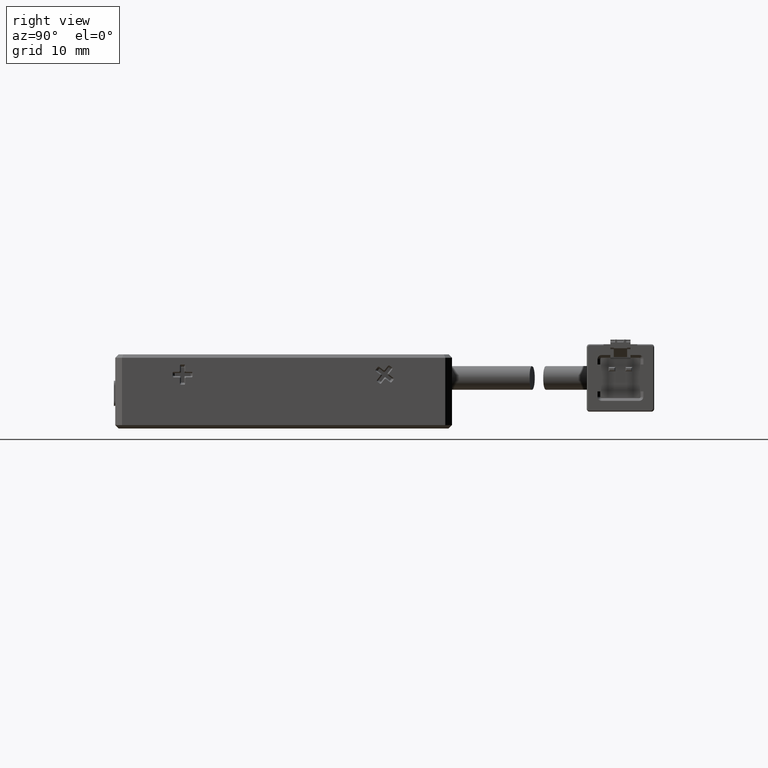
[diagram: clean part render]
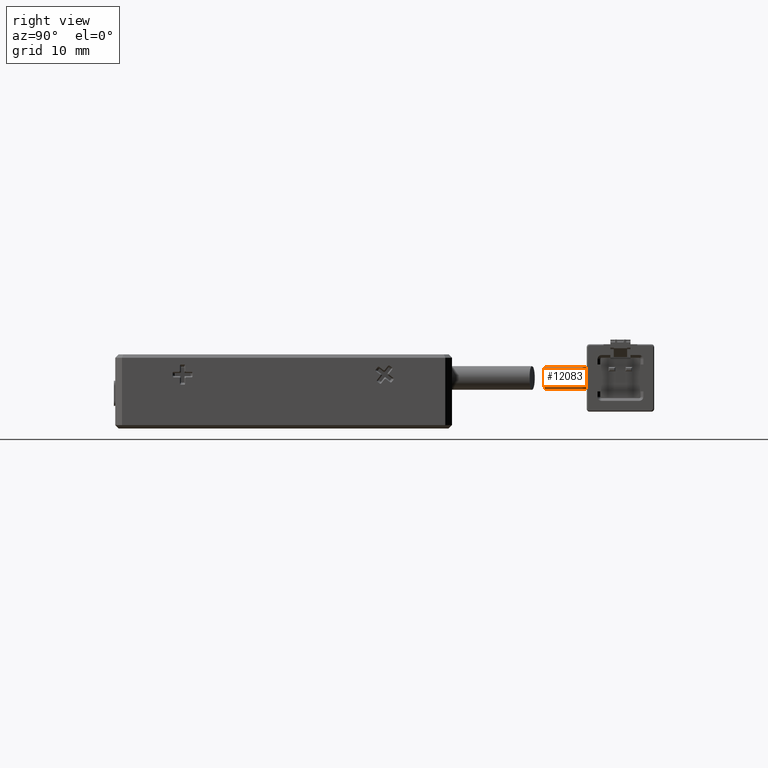
[diagram: same view with one face highlighted and labeled with its STEP entity id]
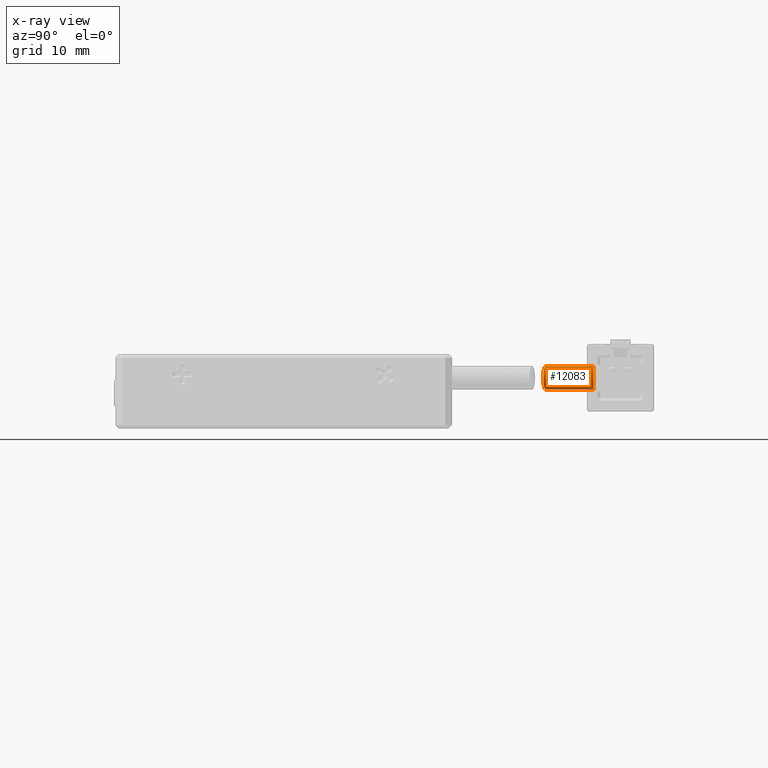
[diagram: x-ray of the same camera — body ghosted, the highlighted face saturated]
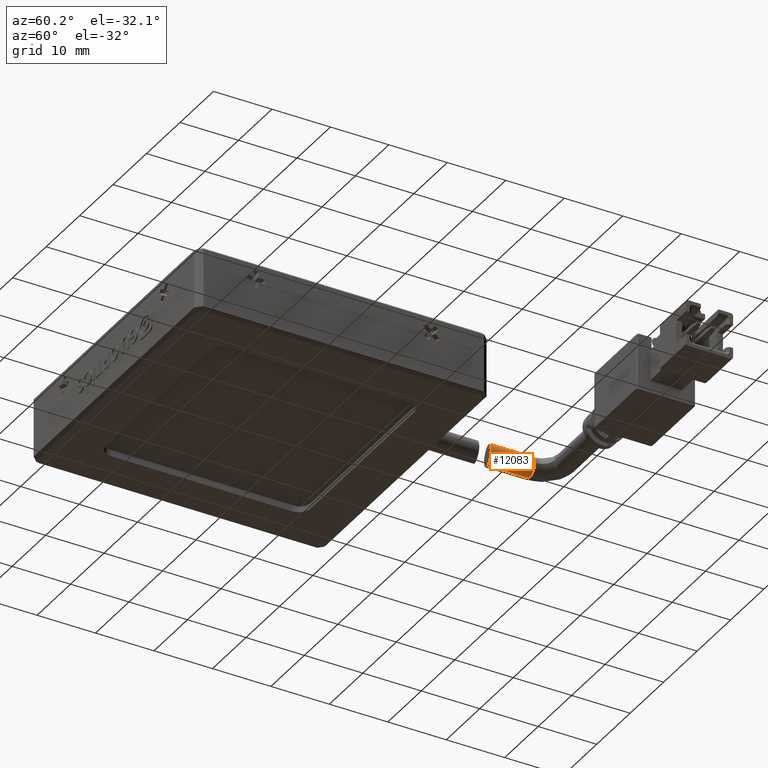
[diagram: same view with one face highlighted and labeled with its STEP entity id]
A machine part, right view. The second image highlights one B-rep face of the part: STEP entity #12083.
The next image is the same camera in x-ray: the body ghosted, the highlighted face saturated — about 13% of this face is hidden behind the body in this view.
A second angle (auxiliary view) of the same face is appended — the face is thin or edge-on in the first view.
In plain terms, the highlighted cylindrical surface (edge-blend (fillet) strip) has radius 1.75 mm, axis along (0, -1, -0).
Its self-contained STEP definition (entity closure, byte-faithful):
#365 = CARTESIAN_POINT ( 'NONE',  ( 19.26702531645571900, 60.21113924050633400, -3.000000000000000900 ) ) ;
#1359 = CARTESIAN_POINT ( 'NONE',  ( 19.71275514413443400, 53.02742988468224200, 0.4460012198360881500 ) ) ;
#1499 = CARTESIAN_POINT ( 'NONE',  ( 21.00559351033045300, 52.74674787386325600, -1.480970045366376100 ) ) ;
#1631 = CARTESIAN_POINT ( 'NONE',  ( 19.26702531645568000, 53.13781279950961800, -3.000000000000000900 ) ) ;
#2390 = VERTEX_POINT ( 'NONE', #15732 ) ;
#2469 = VERTEX_POINT ( 'NONE', #29141 ) ;
#3048 = DIRECTION ( 'NONE',  ( 0.0000000000000000000, 0.0000000000000000000, -1.000000000000000000 ) ) ;
#3087 = EDGE_CURVE ( 'NONE', #2469, #29825, #23525, .T. ) ;
#3226 = B_SPLINE_CURVE_WITH_KNOTS ( 'NONE', 3,
 ( #30284, #33709, #20791, #1359, #24031, #4655, #27295, #7927, #30552, #11155, #33852, #14418, #37136, #17686, #40439, #20923, #1499, #24179, #4799, #27426, #8073, #30698, #11296, #33979, #14565, #37260, #17815, #40582, #21057, #1631 ),
 .UNSPECIFIED., .F., .F.,
 ( 4, 2, 2, 2, 2, 2, 2, 2, 2, 2, 2, 2, 2, 2, 4 ),
 ( 0.005540962746231159300, 0.005887269118096597300, 0.006233575489962035200, 0.006579881861827473200, 0.006926188233692912000, 0.007272494605558350000, 0.007618800977423788000, 0.008311413721154658700, 0.008657720093020094100, 0.009004026464885529400, 0.009350332836750966500, 0.009696639208616401900, 0.01004294558048183700, 0.01038925195234727300, 0.01108186469607814300 ),
 .UNSPECIFIED. ) ;
#3885 = CARTESIAN_POINT ( 'NONE',  ( 19.26702531645568000, 53.13781279950961800, -3.000000000000000900 ) ) ;
#4655 = CARTESIAN_POINT ( 'NONE',  ( 20.03266328440231400, 52.95046281340025700, 0.3277212836192208700 ) ) ;
#4799 = CARTESIAN_POINT ( 'NONE',  ( 20.92605545862183500, 52.76088108727887500, -1.818788728676879600 ) ) ;
#5282 = VECTOR ( 'NONE', #31128, 1000.000000000000000 ) ;
#6524 = ORIENTED_EDGE ( 'NONE', *, *, #9327, .F. ) ;
#7573 = CIRCLE ( 'NONE', #40349, 1.749999999999998000 ) ;
#7927 = CARTESIAN_POINT ( 'NONE',  ( 20.32259914152162500, 52.88400808674843000, 0.1504154750593839600 ) ) ;
#8073 = CARTESIAN_POINT ( 'NONE',  ( 20.78074943026412300, 52.78815807862969900, -2.135628169013483700 ) ) ;
#9246 = CARTESIAN_POINT ( 'NONE',  ( 19.26702531645571900, 60.21113924050633400, -1.250000000000000700 ) ) ;
#9327 = EDGE_CURVE ( 'NONE', #2390, #31648, #40543, .T. ) ;
#10553 = ORIENTED_EDGE ( 'NONE', *, *, #34792, .F. ) ;
#11155 = CARTESIAN_POINT ( 'NONE',  ( 20.57638476253562800, 52.82926926927282100, -0.08330004087582067200 ) ) ;
#11296 = CARTESIAN_POINT ( 'NONE',  ( 20.57868778527137000, 52.82878547816557800, -2.414233212881812900 ) ) ;
#12083 = ADVANCED_FACE ( 'NONE', ( #36880 ), #25118, .T. ) ;
#12508 = DIRECTION ( 'NONE',  ( -1.000000000000000000, 0.0000000000000000000, 0.0000000000000000000 ) ) ;
#13929 = EDGE_LOOP ( 'NONE', ( #10553, #22476, #36741, #6524, #26024 ) ) ;
#14418 = CARTESIAN_POINT ( 'NONE',  ( 20.77941244022430200, 52.78841559469255200, -0.3620237688423448800 ) ) ;
#14565 = CARTESIAN_POINT ( 'NONE',  ( 20.32497787843101000, 52.88347877696618600, -2.648618438074765700 ) ) ;
#15635 = VECTOR ( 'NONE', #19771, 1000.000000000000000 ) ;
#15732 = CARTESIAN_POINT ( 'NONE',  ( 19.26702531645571900, 60.21113924050633400, -3.000000000000000900 ) ) ;
#16397 = DIRECTION ( 'NONE',  ( 1.836970198721029700E-016, 1.000000000000000000, 2.465190328815661900E-032 ) ) ;
#17686 = CARTESIAN_POINT ( 'NONE',  ( 20.96942834471468200, 52.75280744700573600, -0.7837162242917418100 ) ) ;
#17815 = CARTESIAN_POINT ( 'NONE',  ( 20.03340203263386200, 52.95028954449728100, -2.827352278995445700 ) ) ;
#19771 = DIRECTION ( 'NONE',  ( 0.0000000000000000000, -1.000000000000000000, -2.465190328815661900E-032 ) ) ;
#19821 = AXIS2_PLACEMENT_3D ( 'NONE', #35804, #16397, #39071 ) ;
#20791 = CARTESIAN_POINT ( 'NONE',  ( 19.49246392518551100, 53.08175261598128700, 0.4890436022889044800 ) ) ;
#20923 = CARTESIAN_POINT ( 'NONE',  ( 21.01714647240194000, 52.74475973531253500, -1.363705761591332600 ) ) ;
#21057 = CARTESIAN_POINT ( 'NONE',  ( 19.49425478972169800, 53.08136872557878400, -3.000000000000006200 ) ) ;
#22476 = ORIENTED_EDGE ( 'NONE', *, *, #3087, .T. ) ;
#23525 = LINE ( 'NONE', #34392, #5282 ) ;
#24031 = CARTESIAN_POINT ( 'NONE',  ( 19.82225576703411500, 53.00070325726741100, 0.4134677915418077400 ) ) ;
#24179 = CARTESIAN_POINT ( 'NONE',  ( 20.95987277205536600, 52.75483677469100700, -1.708512833712677800 ) ) ;
#25118 = CYLINDRICAL_SURFACE ( 'NONE', #25463, 1.750000000000000200 ) ;
#25463 = AXIS2_PLACEMENT_3D ( 'NONE', #32113, #28828, #3048 ) ;
#26024 = ORIENTED_EDGE ( 'NONE', *, *, #32781, .F. ) ;
#27295 = CARTESIAN_POINT ( 'NONE',  ( 20.13273029421894100, 52.92712345963430200, 0.2751080271331686800 ) ) ;
#27426 = CARTESIAN_POINT ( 'NONE',  ( 20.83667398122136300, 52.77749891891909300, -2.032371203256483600 ) ) ;
#28444 = CARTESIAN_POINT ( 'NONE',  ( 19.26702531645571900, 53.13781279950959700, 0.4999999999999993300 ) ) ;
#28828 = DIRECTION ( 'NONE',  ( 0.0000000000000000000, -1.000000000000000000, -2.465190328815661900E-032 ) ) ;
#29141 = CARTESIAN_POINT ( 'NONE',  ( 19.26702531645571900, 60.21113924050633400, 0.4999999999999995600 ) ) ;
#29825 = VERTEX_POINT ( 'NONE', #28444 ) ;
#30284 = CARTESIAN_POINT ( 'NONE',  ( 19.26702531645571900, 53.13781279950959700, 0.4999999999999993300 ) ) ;
#30422 = CARTESIAN_POINT ( 'NONE',  ( 21.01702531645572200, 60.21113924050633400, -1.250000000000000900 ) ) ;
#30552 = CARTESIAN_POINT ( 'NONE',  ( 20.41319719900375400, 52.86407317906886800, 0.07736617755438678100 ) ) ;
#30698 = CARTESIAN_POINT ( 'NONE',  ( 20.65197974646446300, 52.81376118601851000, -2.325917828309582700 ) ) ;
#31128 = DIRECTION ( 'NONE',  ( 0.0000000000000000000, -1.000000000000000000, -2.465190328815661900E-032 ) ) ;
#31648 = VERTEX_POINT ( 'NONE', #3885 ) ;
#31939 = DIRECTION ( 'NONE',  ( 1.836970198721029700E-016, 1.000000000000000000, 2.465190328815661900E-032 ) ) ;
#32113 = CARTESIAN_POINT ( 'NONE',  ( 19.26702531645571900, 60.21113924050633400, -1.250000000000000700 ) ) ;
#32781 = EDGE_CURVE ( 'NONE', #38885, #2390, #33984, .T. ) ;
#33709 = CARTESIAN_POINT ( 'NONE',  ( 19.38064871946008000, 53.10958860980712600, 0.4999999999981187300 ) ) ;
#33852 = CARTESIAN_POINT ( 'NONE',  ( 20.64971492993262800, 52.81422004669273900, -0.1711181565967997700 ) ) ;
#33979 = CARTESIAN_POINT ( 'NONE',  ( 20.41392475564140000, 52.86391075644112200, -2.576845538287035400 ) ) ;
#33984 = CIRCLE ( 'NONE', #19821, 1.749999999999998000 ) ;
#34392 = CARTESIAN_POINT ( 'NONE',  ( 19.26702531645571900, 60.21113924050633400, 0.4999999999999993300 ) ) ;
#34792 = EDGE_CURVE ( 'NONE', #2469, #38885, #7573, .T. ) ;
#35804 = CARTESIAN_POINT ( 'NONE',  ( 19.26702531645571900, 60.21113924050633400, -1.250000000000000700 ) ) ;
#36741 = ORIENTED_EDGE ( 'NONE', *, *, #38896, .T. ) ;
#36880 = FACE_OUTER_BOUND ( 'NONE', #13929, .T. ) ;
#37136 = CARTESIAN_POINT ( 'NONE',  ( 20.83538360316696000, 52.77774380343992500, -0.4651264802321993200 ) ) ;
#37260 = CARTESIAN_POINT ( 'NONE',  ( 20.13534001505378900, 52.92652027328793500, -2.773622900494511000 ) ) ;
#38885 = VERTEX_POINT ( 'NONE', #30422 ) ;
#38896 = EDGE_CURVE ( 'NONE', #29825, #31648, #3226, .T. ) ;
#39071 = DIRECTION ( 'NONE',  ( -1.000000000000000000, 0.0000000000000000000, 0.0000000000000000000 ) ) ;
#40349 = AXIS2_PLACEMENT_3D ( 'NONE', #9246, #31939, #12508 ) ;
#40439 = CARTESIAN_POINT ( 'NONE',  ( 21.01678007220182600, 52.74482336798283200, -1.017039622290864000 ) ) ;
#40543 = LINE ( 'NONE', #365, #15635 ) ;
#40582 = CARTESIAN_POINT ( 'NONE',  ( 19.71825893429311100, 53.02552907886430900, -2.955984218784192900 ) ) ;